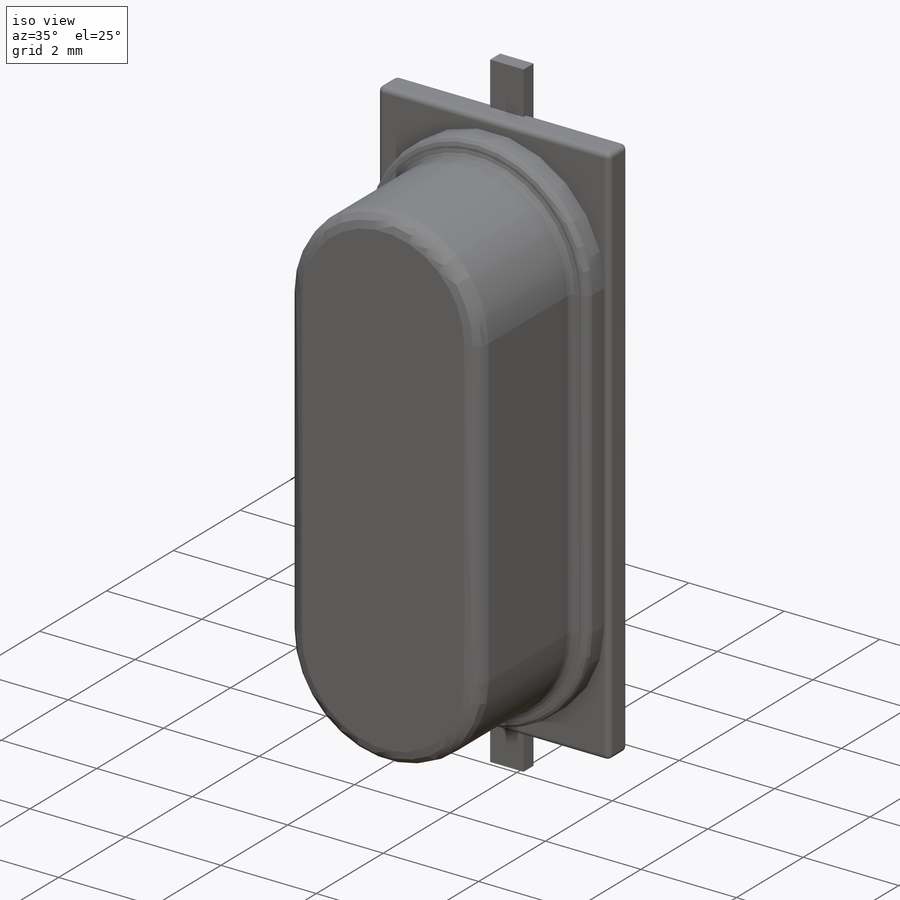
[diagram: iso view]
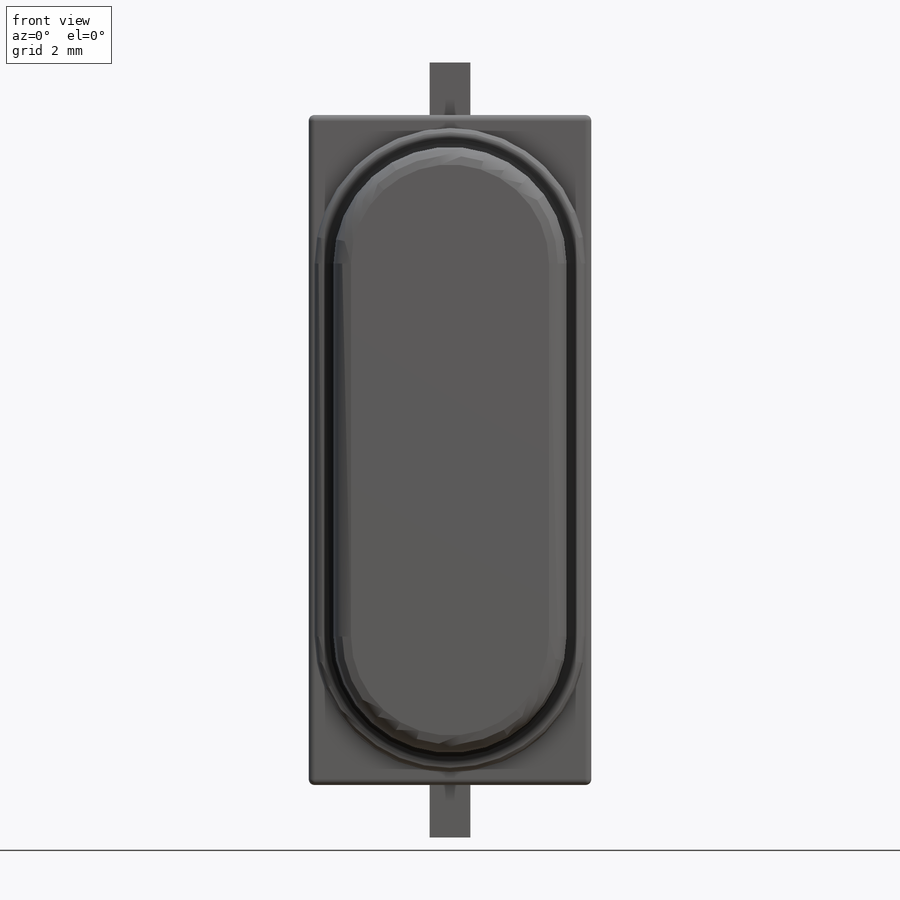
[diagram: front view]
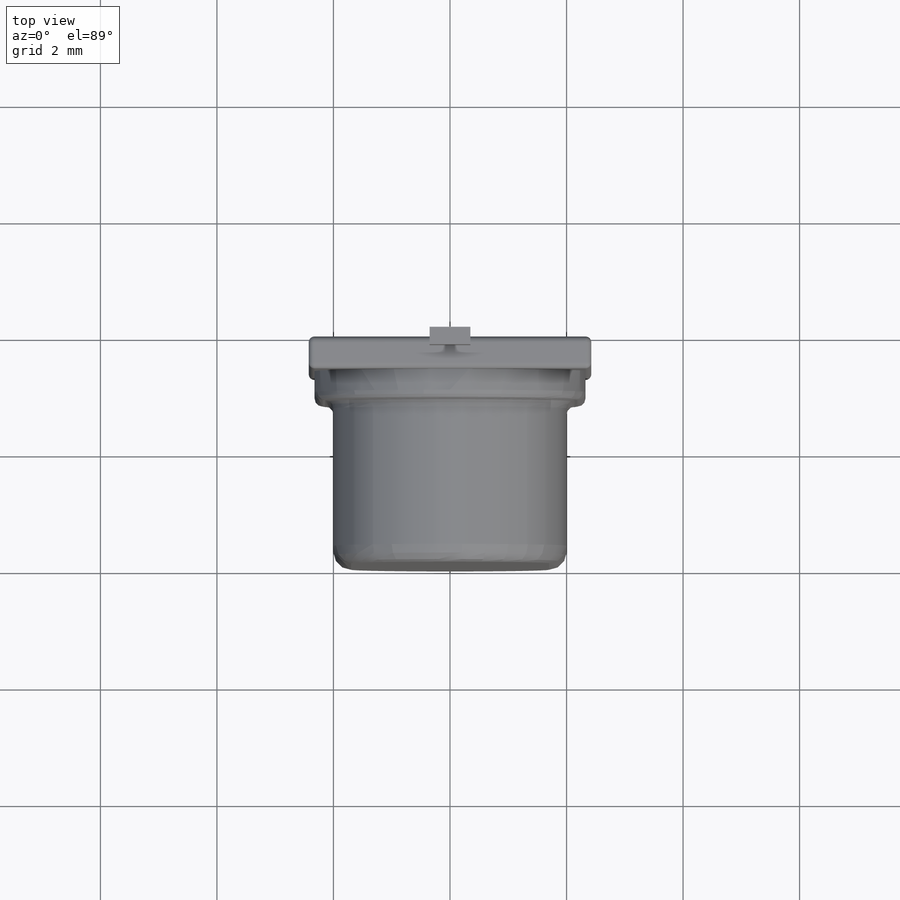
[diagram: top view]
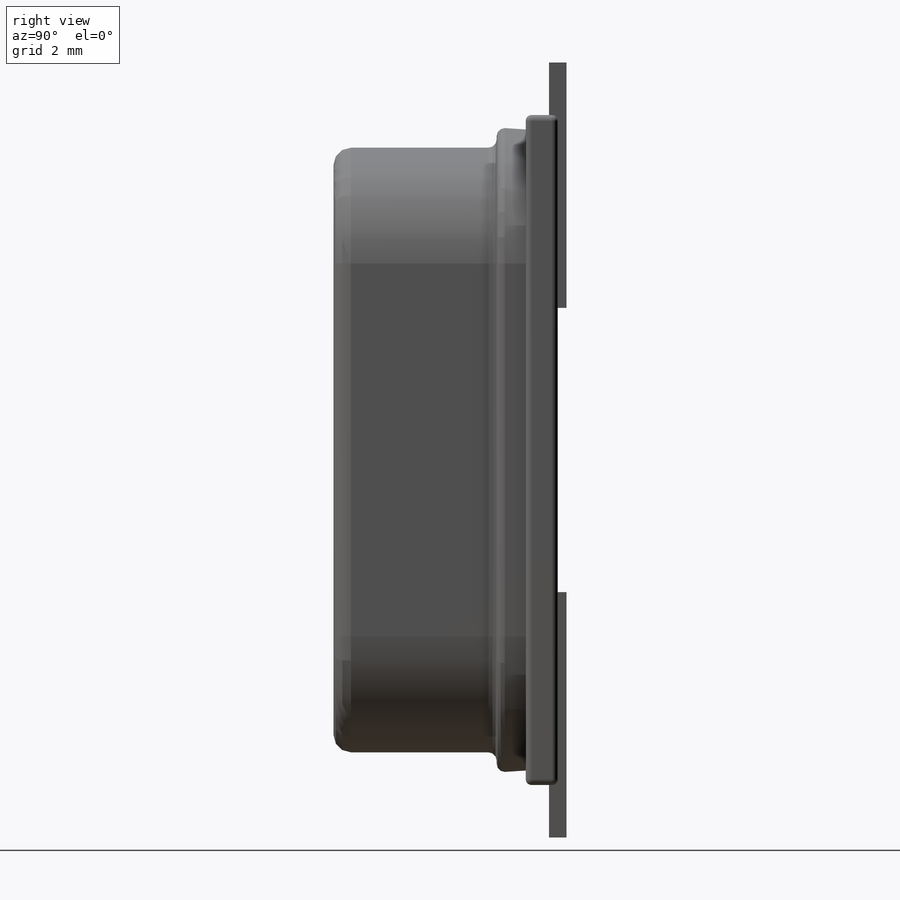
[diagram: right view]
SOLIDWORKS PART (.sldprt)
format: sldprt  version: not decoded by parser v0  size: 297,984 bytes
history: native  units: mm
features: sketch x4, extrude x4, plane x3, fillet x3, material x1 (+9 scaffold rows collapsed)
feature tree (24):
  scaffold x9  (default folders/planes/origin — collapsed)
  material  "Material <not specified>"
  plane  "Plane1"
  plane  "Plane2"
  plane  "Plane3"
  sketch  "Sketch2"  dims[D1=11.05mm D2=4.65mm]
  extrude  "Boss-Extrude1"  Depth=0.5mm
  sketch  "Sketch3"  dims[c1.D1=4.0mm c1.D2=10.4mm c2.D1=0.45mm]
  extrude  "Boss-Extrude2"  Depth=2.8mm
  fillet  "Fillet2"  Radius=0.14mm
  fillet  "Скругление3"  Radius=0.3mm
  sketch  "Эскиз3"  dims[D1=11.5mm D2=4.85mm]
  extrude  "Бобышка-Вытянуть3"  Depth=0.55mm
  fillet  "Скругление4"  Radius=0.1mm
  sketch  "Эскиз1"  dims[c1.D1=1.0mm c1.D2=4.88mm c2.D1=0.7mm c2.D2=13.3mm c2.D3=4.88mm]
  extrude  "Бобышка-Вытянуть4"  Depth=0.3mm
decode coverage: 11 of 11 modeling features carry decoded parameters
note: suppression state not decoded; provenance and decode notes live in map.json
